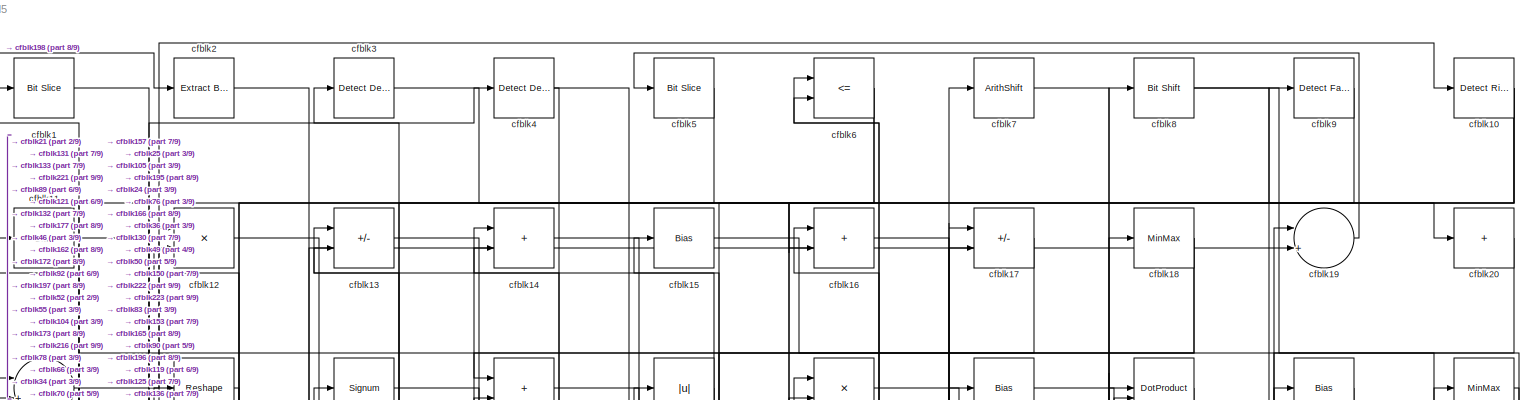
[diagram: root canvas - part 1/9, full width, top band]
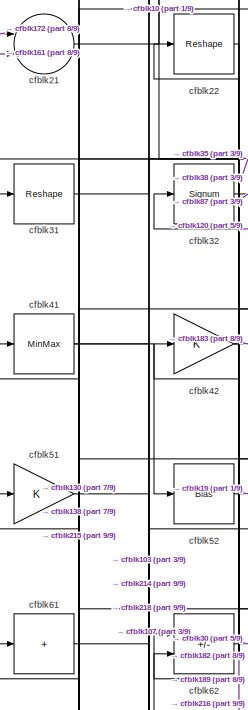
[diagram: root canvas - part 2/9, top left region]
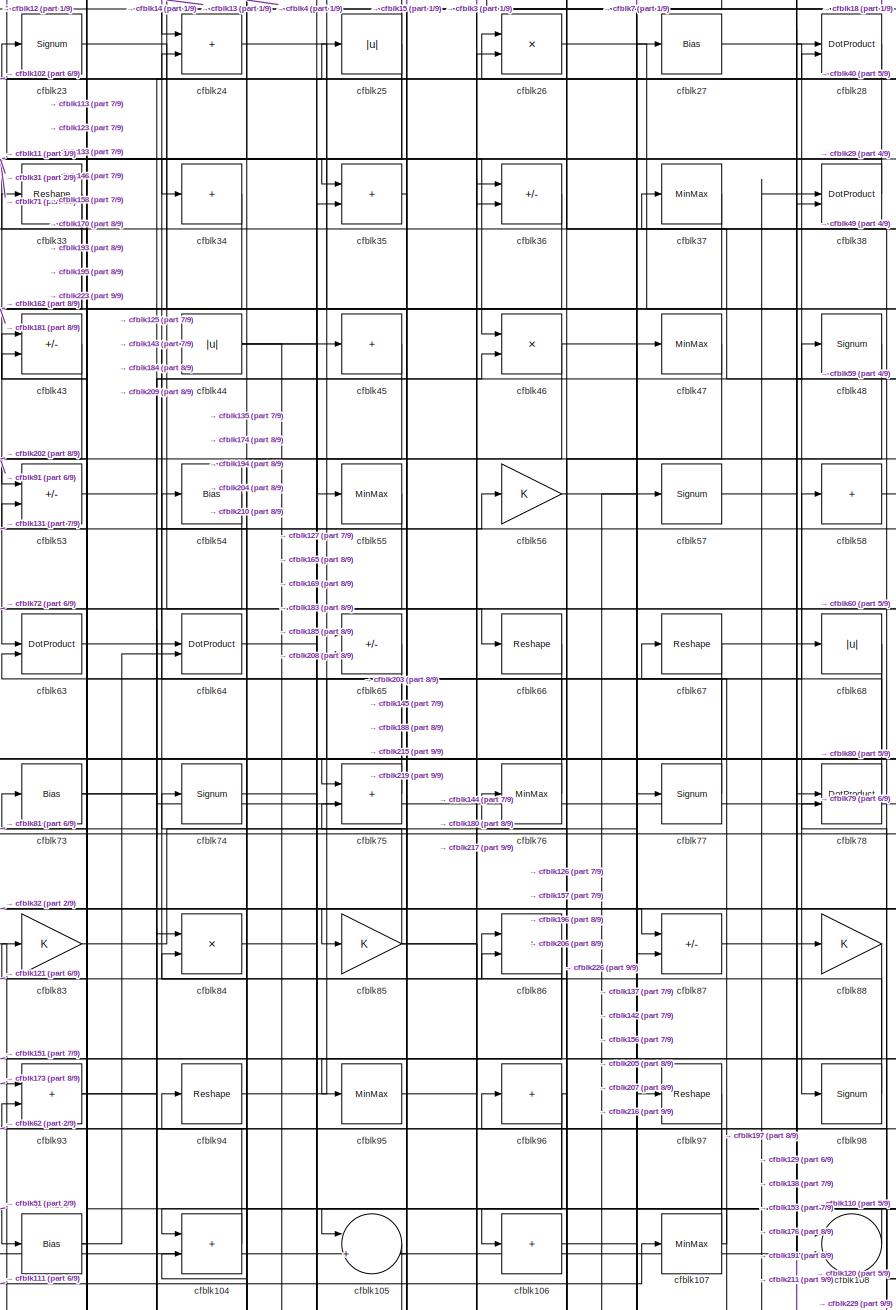
[diagram: root canvas - part 3/9, top center region]
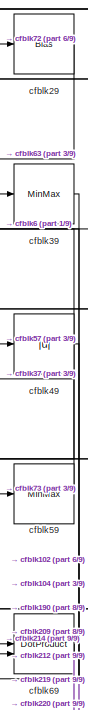
[diagram: root canvas - part 4/9, top right region]
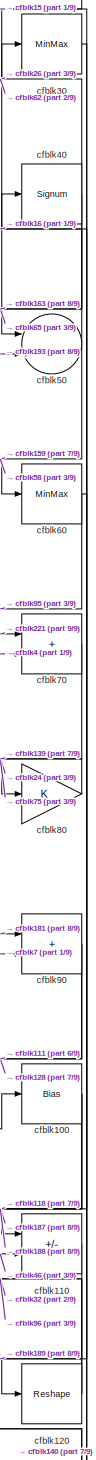
[diagram: root canvas - part 5/9, top right region]
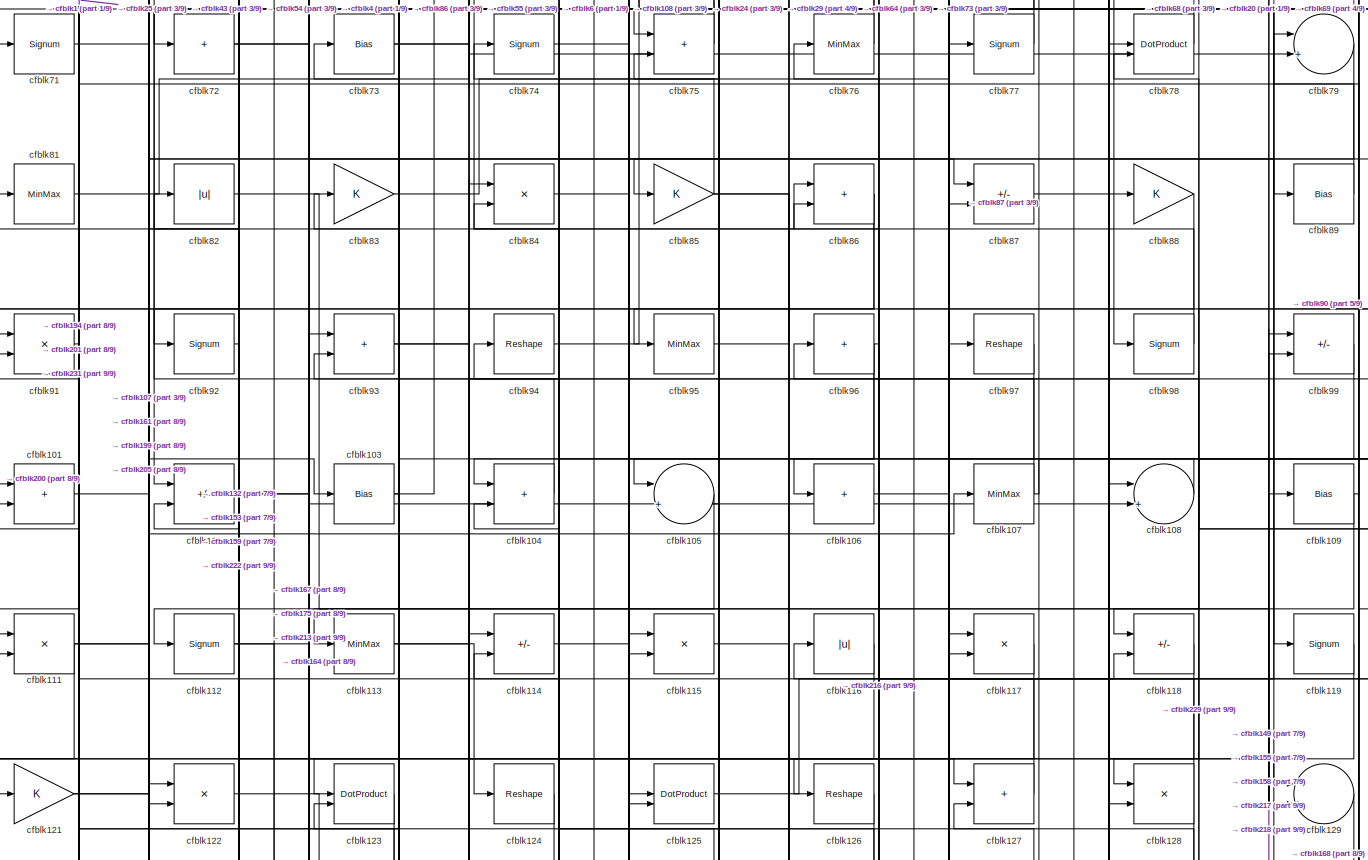
[diagram: root canvas - part 6/9, full width, middle band]
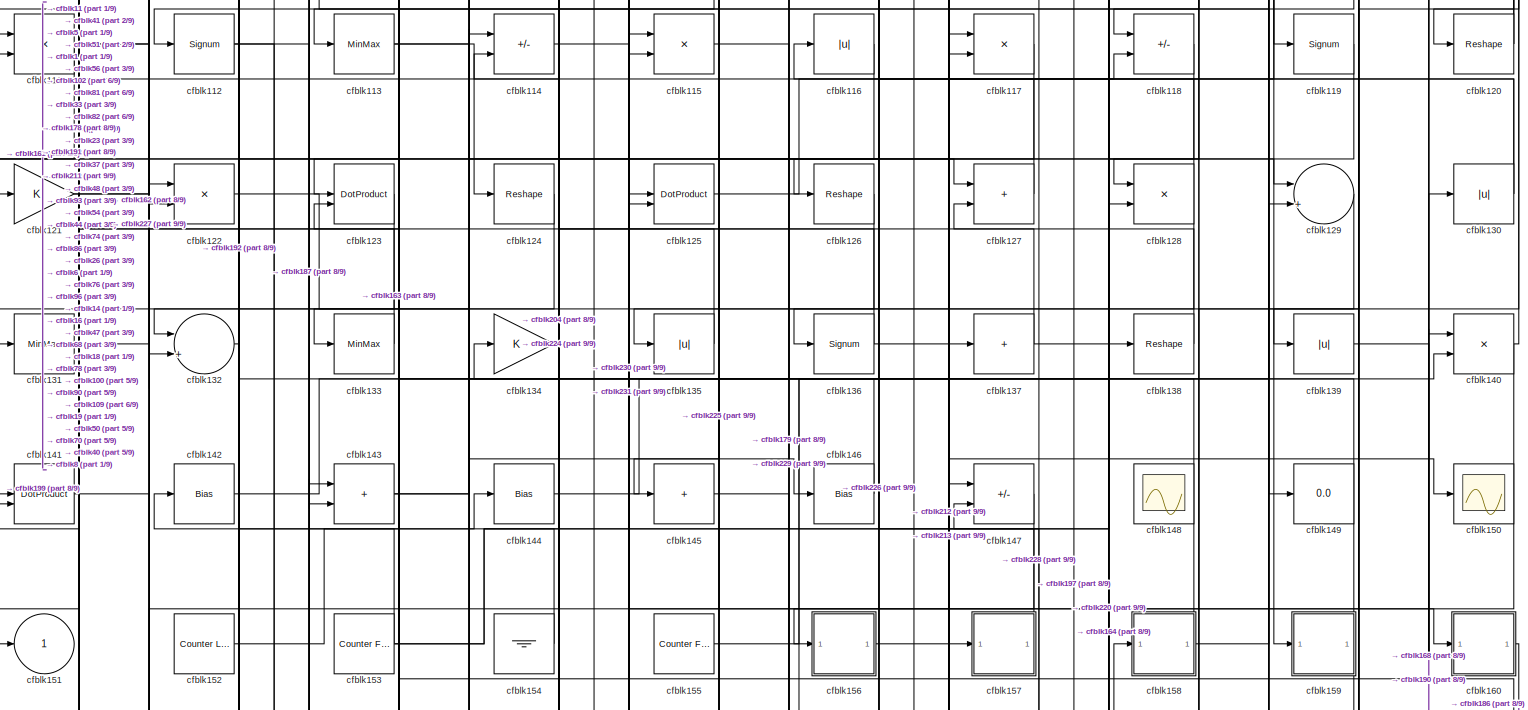
[diagram: root canvas - part 7/9, full width, middle band]
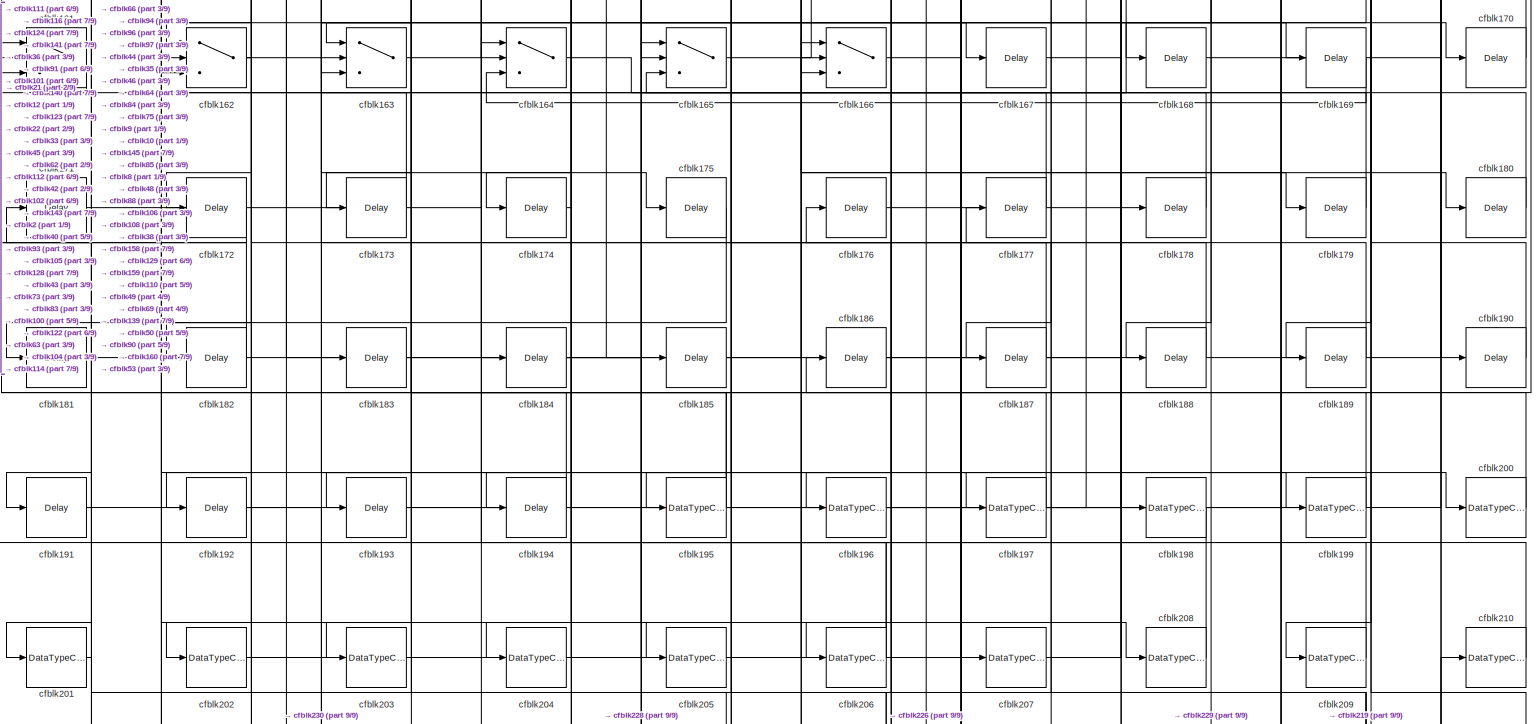
[diagram: root canvas - part 8/9, full width, bottom band]
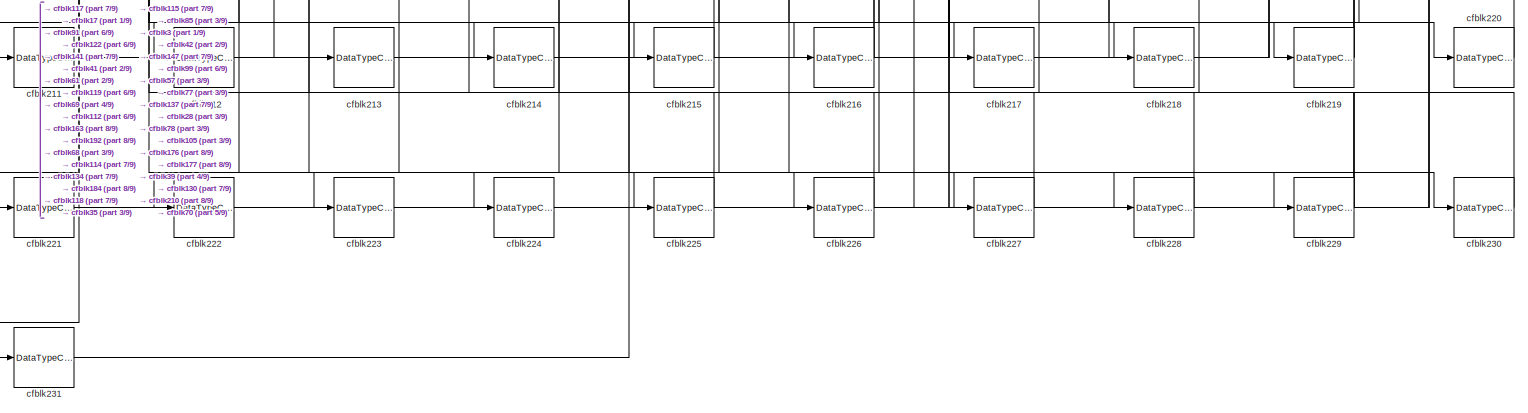
[diagram: root canvas - part 9/9, full width, bottom band]
MODEL slx_5ea6daa9b1d5
KIND model
CONFIG AbsTol = auto
CONFIG EnableMultiTasking = off
CONFIG FixedStep = auto
CONFIG MaxStep = auto
CONFIG MinStep = auto
CONFIG RelTol = 1e-3
CONFIG SampleTimeConstraint = Unconstrained
CONFIG SolverName = VariableStepAuto
CONFIG StartTime = 0.0
CONFIG StopTime = 10.0
BLOCK [Reference] cfblk1  REF=hdlsllib/Logic and Bit
Operations/Bit Slice
  SourceBlock = hdlsllib/Logic and Bit\nOperations/Bit Slice
  SourceType = Bit Slice
BLOCK [Reference] cfblk10  REF=hdlsllib/Logic and Bit
Operations/Detect Rise
Nonnegative
  SourceBlock = hdlsllib/Logic and Bit\nOperations/Detect Rise\nNonnegative
  SourceType = Detect Rise Nonnegative
BLOCK [Bias] cfblk100
  Bias = 0.0
  SaturateOnIntegerOverflow = off
BLOCK [Sum] cfblk101
  IconShape = rectangular
BLOCK [Sum] cfblk102
  IconShape = rectangular
  Inputs = +-
BLOCK [Bias] cfblk103
  Bias = 0.0
  SaturateOnIntegerOverflow = off
BLOCK [Sum] cfblk104
  IconShape = rectangular
BLOCK [Sum] cfblk105
  Inputs = |++
BLOCK [Sum] cfblk106
  IconShape = rectangular
  Inputs = +
BLOCK [MinMax] cfblk107
BLOCK [Sum] cfblk108
  Inputs = |++
BLOCK [Bias] cfblk109
  Bias = 0.0
  SaturateOnIntegerOverflow = off
BLOCK [Bias] cfblk11
  Bias = 0.0
  SaturateOnIntegerOverflow = off
BLOCK [Sum] cfblk110
  IconShape = rectangular
  Inputs = +-
BLOCK [Product] cfblk111
  Inputs = */
  RndMeth = Zero
  SaturateOnIntegerOverflow = on
BLOCK [Signum] cfblk112
BLOCK [MinMax] cfblk113
BLOCK [Sum] cfblk114
  IconShape = rectangular
  Inputs = +-
BLOCK [Product] cfblk115
  Inputs = */
  RndMeth = Zero
  SaturateOnIntegerOverflow = on
BLOCK [Abs] cfblk116
  SaturateOnIntegerOverflow = off
BLOCK [Product] cfblk117
  Inputs = */
  RndMeth = Zero
  SaturateOnIntegerOverflow = on
BLOCK [Sum] cfblk118
  IconShape = rectangular
  Inputs = +-
BLOCK [Signum] cfblk119
BLOCK [Product] cfblk12
  Inputs = */
  RndMeth = Zero
  SaturateOnIntegerOverflow = on
BLOCK [Reshape] cfblk120
BLOCK [Gain] cfblk121
BLOCK [Product] cfblk122
  Inputs = */
  RndMeth = Zero
  SaturateOnIntegerOverflow = on
BLOCK [DotProduct] cfblk123
  OutDataTypeStr = Inherit: Inherit via internal rule
BLOCK [Reshape] cfblk124
BLOCK [DotProduct] cfblk125
  OutDataTypeStr = Inherit: Inherit via internal rule
BLOCK [Reshape] cfblk126
BLOCK [Sum] cfblk127
  IconShape = rectangular
BLOCK [Product] cfblk128
  Inputs = */
  RndMeth = Zero
  SaturateOnIntegerOverflow = on
BLOCK [Sum] cfblk129
  Inputs = |++
BLOCK [Sum] cfblk13
  IconShape = rectangular
  Inputs = +-
BLOCK [Abs] cfblk130
  SaturateOnIntegerOverflow = off
BLOCK [MinMax] cfblk131
BLOCK [Sum] cfblk132
  Inputs = |++
BLOCK [MinMax] cfblk133
BLOCK [Gain] cfblk134
BLOCK [Abs] cfblk135
  SaturateOnIntegerOverflow = off
BLOCK [Signum] cfblk136
BLOCK [Sum] cfblk137
  IconShape = rectangular
  Inputs = +
BLOCK [Reshape] cfblk138
BLOCK [Abs] cfblk139
  SaturateOnIntegerOverflow = off
BLOCK [Sum] cfblk14
  IconShape = rectangular
BLOCK [Product] cfblk140
  Inputs = */
  RndMeth = Zero
  SaturateOnIntegerOverflow = on
BLOCK [DotProduct] cfblk141
  OutDataTypeStr = Inherit: Inherit via internal rule
BLOCK [Bias] cfblk142
  Bias = 0.0
  SaturateOnIntegerOverflow = off
BLOCK [Sum] cfblk143
  IconShape = rectangular
BLOCK [Bias] cfblk144
  Bias = 0.0
  SaturateOnIntegerOverflow = off
BLOCK [Sum] cfblk145
  IconShape = rectangular
  Inputs = +
BLOCK [Bias] cfblk146
  Bias = 0.0
  SaturateOnIntegerOverflow = off
BLOCK [Sum] cfblk147
  IconShape = rectangular
  Inputs = +-
BLOCK [Scope] cfblk148
  Floating = on
  NumInputPorts = 1
  ScopeSpecificationString = Simulink.scopes.TimeScopeBlockCfg('CurrentConfiguration', extmgr.ConfigurationSet(extmgr.Configuration('Core','General UI',true,'FigureColor',[0.156862745098039 0.156862745098039 0.156862745098039]),extmgr.Configuration('Core','Source UI',true),extmgr.Configuration('Sources','WiredSimulink',true,'DataLoggingVariableName','ScopeData1','DataLoggingSaveFormat','StructureWithTime','DataLoggingLimitDat...<+2713ch>
BLOCK [Display] cfblk149
  Decimation = 1
BLOCK [Bias] cfblk15
  Bias = 0.0
  SaturateOnIntegerOverflow = off
BLOCK [Scope] cfblk150
  Floating = off
  NumInputPorts = 1
  ScopeSpecificationString = Simulink.scopes.TimeScopeBlockCfg('CurrentConfiguration', extmgr.ConfigurationSet(extmgr.Configuration('Core','General UI',true),extmgr.Configuration('Core','Source UI',true),extmgr.Configuration('Sources','WiredSimulink',true,'DataLoggingVariableName','ScopeData2','DataLoggingSaveFormat','Array','DataLoggingLimitDataPoints',true,'DataLoggingDecimation','1'),extmgr.Configuration('Visuals','Time Do...<+868ch>
BLOCK [Outport] cfblk151
  VectorParamsAs1DForOutWhenUnconnected = off
BLOCK [Reference] cfblk152  REF=hdlsllib/Sources/Counter
Limited
  SourceBlock = hdlsllib/Sources/Counter\nLimited
  SourceType = Counter Limited
BLOCK [Reference] cfblk153  REF=hdlsllib/Sources/Counter
Free-Running
  SourceBlock = hdlsllib/Sources/Counter\nFree-Running
  SourceType = Counter Free-Running
BLOCK [Ground] cfblk154
BLOCK [Reference] cfblk155  REF=hdlsllib/Sources/Counter
Free-Running
  SourceBlock = hdlsllib/Sources/Counter\nFree-Running
  SourceType = Counter Free-Running
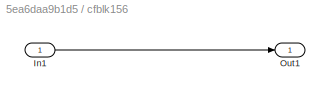
BLOCK [SubSystem] cfblk156
  LibrarySourceBlock = hdlsllib/Ports &\nSubsystems/Subsystem
BLOCK [Inport] cfblk156/In1
BLOCK [Outport] cfblk156/Out1
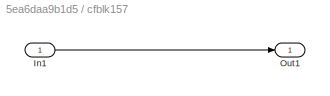
BLOCK [SubSystem] cfblk157
  LibrarySourceBlock = hdlsllib/Ports &\nSubsystems/Subsystem
BLOCK [Inport] cfblk157/In1
BLOCK [Outport] cfblk157/Out1
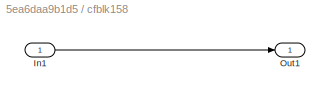
BLOCK [SubSystem] cfblk158
  LibrarySourceBlock = hdlsllib/Ports &\nSubsystems/Subsystem
BLOCK [Inport] cfblk158/In1
BLOCK [Outport] cfblk158/Out1
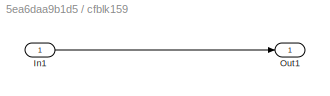
BLOCK [SubSystem] cfblk159
  LibrarySourceBlock = hdlsllib/Ports &\nSubsystems/Subsystem
BLOCK [Inport] cfblk159/In1
BLOCK [Outport] cfblk159/Out1
BLOCK [Sum] cfblk16
  IconShape = rectangular
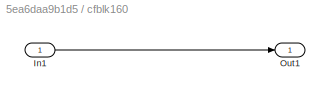
BLOCK [SubSystem] cfblk160
  LibrarySourceBlock = hdlsllib/Ports &\nSubsystems/Subsystem
BLOCK [Inport] cfblk160/In1
BLOCK [Outport] cfblk160/Out1
BLOCK [Switch] cfblk161
  InputSameDT = off
  SaturateOnIntegerOverflow = off
BLOCK [Switch] cfblk162
  InputSameDT = off
  SaturateOnIntegerOverflow = off
BLOCK [Switch] cfblk163
  InputSameDT = off
  SaturateOnIntegerOverflow = off
BLOCK [Switch] cfblk164
  InputSameDT = off
  SaturateOnIntegerOverflow = off
BLOCK [Switch] cfblk165
  InputSameDT = off
  SaturateOnIntegerOverflow = off
BLOCK [Switch] cfblk166
  InputSameDT = off
  SaturateOnIntegerOverflow = off
BLOCK [Delay] cfblk167
  InputPortMap = u0
  SampleTime = 1
BLOCK [Delay] cfblk168
  InputPortMap = u0
  SampleTime = 1
BLOCK [Delay] cfblk169
  InputPortMap = u0
  SampleTime = 1
BLOCK [Sum] cfblk17
  IconShape = rectangular
  Inputs = +-
BLOCK [Delay] cfblk170
  InputPortMap = u0
  SampleTime = 1
BLOCK [Delay] cfblk171
  InputPortMap = u0
  SampleTime = 1
BLOCK [Delay] cfblk172
  InputPortMap = u0
  SampleTime = 1
BLOCK [Delay] cfblk173
  InputPortMap = u0
  SampleTime = 1
BLOCK [Delay] cfblk174
  InputPortMap = u0
  SampleTime = 1
BLOCK [Delay] cfblk175
  InputPortMap = u0
  SampleTime = 1
BLOCK [Delay] cfblk176
  InputPortMap = u0
  SampleTime = 1
BLOCK [Delay] cfblk177
  InputPortMap = u0
  SampleTime = 1
BLOCK [Delay] cfblk178
  InputPortMap = u0
  SampleTime = 1
BLOCK [Delay] cfblk179
  InputPortMap = u0
  SampleTime = 1
BLOCK [MinMax] cfblk18
BLOCK [Delay] cfblk180
  InputPortMap = u0
  SampleTime = 1
BLOCK [Delay] cfblk181
  InputPortMap = u0
  SampleTime = 1
BLOCK [Delay] cfblk182
  InputPortMap = u0
  SampleTime = 1
BLOCK [Delay] cfblk183
  InputPortMap = u0
  SampleTime = 1
BLOCK [Delay] cfblk184
  InputPortMap = u0
  SampleTime = 1
BLOCK [Delay] cfblk185
  InputPortMap = u0
  SampleTime = 1
BLOCK [Delay] cfblk186
  InputPortMap = u0
  SampleTime = 1
BLOCK [Delay] cfblk187
  InputPortMap = u0
  SampleTime = 1
BLOCK [Delay] cfblk188
  InputPortMap = u0
  SampleTime = 1
BLOCK [Delay] cfblk189
  InputPortMap = u0
  SampleTime = 1
BLOCK [Sum] cfblk19
  Inputs = |++
BLOCK [Delay] cfblk190
  InputPortMap = u0
  SampleTime = 1
BLOCK [Delay] cfblk191
  InputPortMap = u0
  SampleTime = 1
BLOCK [Delay] cfblk192
  InputPortMap = u0
  SampleTime = 1
BLOCK [Delay] cfblk193
  InputPortMap = u0
  SampleTime = 1
BLOCK [Delay] cfblk194
  InputPortMap = u0
  SampleTime = 1
BLOCK [DataTypeConversion] cfblk195
  RndMeth = Floor
  SaturateOnIntegerOverflow = off
BLOCK [DataTypeConversion] cfblk196
  OutDataTypeStr = uint8
  RndMeth = Floor
  SaturateOnIntegerOverflow = off
BLOCK [DataTypeConversion] cfblk197
  RndMeth = Floor
  SaturateOnIntegerOverflow = off
BLOCK [DataTypeConversion] cfblk198
  OutDataTypeStr = uint8
  RndMeth = Floor
  SaturateOnIntegerOverflow = off
BLOCK [DataTypeConversion] cfblk199
  OutDataTypeStr = uint8
  RndMeth = Floor
  SaturateOnIntegerOverflow = off
BLOCK [Reference] cfblk2  REF=simulink/Logic and Bit
Operations/Extract Bits
  LibrarySourceBlock = hdlsllib/Logic and Bit\nOperations/Extract Bits
  SourceBlock = simulink/Logic and Bit\nOperations/Extract Bits
  SourceType = Extract Bits
BLOCK [Sum] cfblk20
  IconShape = rectangular
  Inputs = +
BLOCK [DataTypeConversion] cfblk200
  OutDataTypeStr = uint8
  RndMeth = Floor
  SaturateOnIntegerOverflow = off
BLOCK [DataTypeConversion] cfblk201
  OutDataTypeStr = uint8
  RndMeth = Floor
  SaturateOnIntegerOverflow = off
BLOCK [DataTypeConversion] cfblk202
  OutDataTypeStr = uint8
  RndMeth = Floor
  SaturateOnIntegerOverflow = off
BLOCK [DataTypeConversion] cfblk203
  OutDataTypeStr = uint8
  RndMeth = Floor
  SaturateOnIntegerOverflow = off
BLOCK [DataTypeConversion] cfblk204
  RndMeth = Floor
  SaturateOnIntegerOverflow = off
BLOCK [DataTypeConversion] cfblk205
  OutDataTypeStr = uint8
  RndMeth = Floor
  SaturateOnIntegerOverflow = off
BLOCK [DataTypeConversion] cfblk206
  RndMeth = Floor
  SaturateOnIntegerOverflow = off
BLOCK [DataTypeConversion] cfblk207
  OutDataTypeStr = uint8
  RndMeth = Floor
  SaturateOnIntegerOverflow = off
BLOCK [DataTypeConversion] cfblk208
  OutDataTypeStr = uint8
  RndMeth = Floor
  SaturateOnIntegerOverflow = off
BLOCK [DataTypeConversion] cfblk209
  OutDataTypeStr = uint8
  RndMeth = Floor
  SaturateOnIntegerOverflow = off
BLOCK [Sum] cfblk21
  Inputs = |++
BLOCK [DataTypeConversion] cfblk210
  OutDataTypeStr = uint8
  RndMeth = Floor
  SaturateOnIntegerOverflow = off
BLOCK [DataTypeConversion] cfblk211
  OutDataTypeStr = uint8
  RndMeth = Floor
  SaturateOnIntegerOverflow = off
BLOCK [DataTypeConversion] cfblk212
  OutDataTypeStr = uint8
  RndMeth = Floor
  SaturateOnIntegerOverflow = off
BLOCK [DataTypeConversion] cfblk213
  OutDataTypeStr = uint8
  RndMeth = Floor
  SaturateOnIntegerOverflow = off
BLOCK [DataTypeConversion] cfblk214
  OutDataTypeStr = uint8
  RndMeth = Floor
  SaturateOnIntegerOverflow = off
BLOCK [DataTypeConversion] cfblk215
  OutDataTypeStr = uint8
  RndMeth = Floor
  SaturateOnIntegerOverflow = off
BLOCK [DataTypeConversion] cfblk216
  RndMeth = Floor
  SaturateOnIntegerOverflow = off
BLOCK [DataTypeConversion] cfblk217
  OutDataTypeStr = uint8
  RndMeth = Floor
  SaturateOnIntegerOverflow = off
BLOCK [DataTypeConversion] cfblk218
  OutDataTypeStr = uint8
  RndMeth = Floor
  SaturateOnIntegerOverflow = off
BLOCK [DataTypeConversion] cfblk219
  RndMeth = Floor
  SaturateOnIntegerOverflow = off
BLOCK [Reshape] cfblk22
BLOCK [DataTypeConversion] cfblk220
  OutDataTypeStr = uint8
  RndMeth = Floor
  SaturateOnIntegerOverflow = off
BLOCK [DataTypeConversion] cfblk221
  OutDataTypeStr = uint8
  RndMeth = Floor
  SaturateOnIntegerOverflow = off
BLOCK [DataTypeConversion] cfblk222
  OutDataTypeStr = uint8
  RndMeth = Floor
  SaturateOnIntegerOverflow = off
BLOCK [DataTypeConversion] cfblk223
  OutDataTypeStr = uint8
  RndMeth = Floor
  SaturateOnIntegerOverflow = off
BLOCK [DataTypeConversion] cfblk224
  OutDataTypeStr = uint8
  RndMeth = Floor
  SaturateOnIntegerOverflow = off
BLOCK [DataTypeConversion] cfblk225
  OutDataTypeStr = uint8
  RndMeth = Floor
  SaturateOnIntegerOverflow = off
BLOCK [DataTypeConversion] cfblk226
  RndMeth = Floor
  SaturateOnIntegerOverflow = off
BLOCK [DataTypeConversion] cfblk227
  OutDataTypeStr = uint8
  RndMeth = Floor
  SaturateOnIntegerOverflow = off
BLOCK [DataTypeConversion] cfblk228
  OutDataTypeStr = uint8
  RndMeth = Floor
  SaturateOnIntegerOverflow = off
BLOCK [DataTypeConversion] cfblk229
  RndMeth = Floor
  SaturateOnIntegerOverflow = off
BLOCK [Signum] cfblk23
BLOCK [DataTypeConversion] cfblk230
  OutDataTypeStr = uint8
  RndMeth = Floor
  SaturateOnIntegerOverflow = off
BLOCK [DataTypeConversion] cfblk231
  OutDataTypeStr = uint8
  RndMeth = Floor
  SaturateOnIntegerOverflow = off
BLOCK [Sum] cfblk24
  IconShape = rectangular
BLOCK [Abs] cfblk25
  SaturateOnIntegerOverflow = off
BLOCK [Product] cfblk26
  Inputs = */
  RndMeth = Zero
  SaturateOnIntegerOverflow = on
BLOCK [Bias] cfblk27
  Bias = 0.0
  SaturateOnIntegerOverflow = off
BLOCK [DotProduct] cfblk28
  OutDataTypeStr = Inherit: Inherit via internal rule
BLOCK [Bias] cfblk29
  Bias = 0.0
  SaturateOnIntegerOverflow = off
BLOCK [Reference] cfblk3  REF=simulink/Logic and Bit
Operations/Detect
Decrease
  LibrarySourceBlock = hdlsllib/Logic and Bit\nOperations/Detect\nDecrease
  SourceBlock = simulink/Logic and Bit\nOperations/Detect\nDecrease
  SourceType = Detect Decrease
BLOCK [MinMax] cfblk30
BLOCK [Reshape] cfblk31
BLOCK [Signum] cfblk32
BLOCK [Reshape] cfblk33
BLOCK [Sum] cfblk34
  IconShape = rectangular
  Inputs = +
BLOCK [Sum] cfblk35
  IconShape = rectangular
BLOCK [Sum] cfblk36
  IconShape = rectangular
  Inputs = +-
BLOCK [MinMax] cfblk37
BLOCK [DotProduct] cfblk38
  OutDataTypeStr = Inherit: Inherit via internal rule
BLOCK [MinMax] cfblk39
BLOCK [Reference] cfblk4  REF=simulink/Logic and Bit
Operations/Detect
Decrease
  LibrarySourceBlock = hdlsllib/Logic and Bit\nOperations/Detect\nDecrease
  SourceBlock = simulink/Logic and Bit\nOperations/Detect\nDecrease
  SourceType = Detect Decrease
BLOCK [Signum] cfblk40
BLOCK [MinMax] cfblk41
BLOCK [Gain] cfblk42
BLOCK [Sum] cfblk43
  IconShape = rectangular
  Inputs = +-
BLOCK [Abs] cfblk44
  SaturateOnIntegerOverflow = off
BLOCK [Sum] cfblk45
  IconShape = rectangular
  Inputs = +
BLOCK [Product] cfblk46
  Inputs = */
  RndMeth = Zero
  SaturateOnIntegerOverflow = on
BLOCK [MinMax] cfblk47
BLOCK [Signum] cfblk48
BLOCK [Abs] cfblk49
  SaturateOnIntegerOverflow = off
BLOCK [Reference] cfblk5  REF=hdlsllib/Logic and Bit
Operations/Bit Slice
  SourceBlock = hdlsllib/Logic and Bit\nOperations/Bit Slice
  SourceType = Bit Slice
BLOCK [Sum] cfblk50
  Inputs = |++
BLOCK [Gain] cfblk51
BLOCK [Bias] cfblk52
  Bias = 0.0
  SaturateOnIntegerOverflow = off
BLOCK [Sum] cfblk53
  IconShape = rectangular
  Inputs = +-
BLOCK [Bias] cfblk54
  Bias = 0.0
  SaturateOnIntegerOverflow = off
BLOCK [MinMax] cfblk55
BLOCK [Gain] cfblk56
BLOCK [Signum] cfblk57
BLOCK [Sum] cfblk58
  IconShape = rectangular
  Inputs = +
BLOCK [MinMax] cfblk59
BLOCK [RelationalOperator] cfblk6
  InputSameDT = off
  Operator = <=
  OutDataTypeStr = boolean
BLOCK [MinMax] cfblk60
BLOCK [Sum] cfblk61
  IconShape = rectangular
  Inputs = +
BLOCK [Sum] cfblk62
  IconShape = rectangular
  Inputs = +-
BLOCK [DotProduct] cfblk63
  OutDataTypeStr = Inherit: Inherit via internal rule
BLOCK [DotProduct] cfblk64
  OutDataTypeStr = Inherit: Inherit via internal rule
BLOCK [Sum] cfblk65
  IconShape = rectangular
  Inputs = +-
BLOCK [Reshape] cfblk66
BLOCK [Reshape] cfblk67
BLOCK [Abs] cfblk68
  SaturateOnIntegerOverflow = off
BLOCK [DotProduct] cfblk69
  OutDataTypeStr = Inherit: Inherit via internal rule
BLOCK [ArithShift] cfblk7
  BitShiftNumber = 8
  InputPortMap = u0
BLOCK [Sum] cfblk70
  IconShape = rectangular
BLOCK [Signum] cfblk71
BLOCK [Sum] cfblk72
  IconShape = rectangular
  Inputs = +
BLOCK [Bias] cfblk73
  Bias = 0.0
  SaturateOnIntegerOverflow = off
BLOCK [Signum] cfblk74
BLOCK [Sum] cfblk75
  IconShape = rectangular
BLOCK [MinMax] cfblk76
BLOCK [Signum] cfblk77
BLOCK [DotProduct] cfblk78
  OutDataTypeStr = Inherit: Inherit via internal rule
BLOCK [Sum] cfblk79
  Inputs = |++
BLOCK [Reference] cfblk8  REF=hdlsllib/Logic and Bit
Operations/Bit Shift
  SourceBlock = hdlsllib/Logic and Bit\nOperations/Bit Shift
  SourceType = Bit Shift
BLOCK [Gain] cfblk80
BLOCK [MinMax] cfblk81
BLOCK [Abs] cfblk82
  SaturateOnIntegerOverflow = off
BLOCK [Gain] cfblk83
BLOCK [Product] cfblk84
  Inputs = */
  RndMeth = Zero
  SaturateOnIntegerOverflow = on
BLOCK [Gain] cfblk85
BLOCK [Sum] cfblk86
  IconShape = rectangular
BLOCK [Sum] cfblk87
  IconShape = rectangular
  Inputs = +-
BLOCK [Gain] cfblk88
BLOCK [Bias] cfblk89
  Bias = 0.0
  SaturateOnIntegerOverflow = off
BLOCK [Reference] cfblk9  REF=hdlsllib/Logic and Bit
Operations/Detect Fall
Negative
  SourceBlock = hdlsllib/Logic and Bit\nOperations/Detect Fall\nNegative
  SourceType = Detect Fall Negative
BLOCK [Sum] cfblk90
  IconShape = rectangular
BLOCK [Product] cfblk91
  Inputs = */
  RndMeth = Zero
  SaturateOnIntegerOverflow = on
BLOCK [Signum] cfblk92
BLOCK [Sum] cfblk93
  IconShape = rectangular
BLOCK [Reshape] cfblk94
BLOCK [MinMax] cfblk95
BLOCK [Sum] cfblk96
  IconShape = rectangular
  Inputs = +
BLOCK [Reshape] cfblk97
BLOCK [Signum] cfblk98
BLOCK [Sum] cfblk99
  IconShape = rectangular
  Inputs = +-
NET cfblk100:1 -> cfblk118:1, cfblk187:1, cfblk188:1
LINE cfblk101:1 -> cfblk199:1
NET cfblk102:1 -> cfblk167:1, cfblk24:2
NET cfblk103:1 -> cfblk43:1, cfblk64:2
LINE cfblk104:1 -> cfblk13:1
LINE cfblk105:1 -> cfblk203:1
LINE cfblk106:1 -> cfblk207:1
NET cfblk107:1 -> cfblk62:1, cfblk67:1
LINE cfblk108:1 -> cfblk106:1
NET cfblk109:1 -> cfblk132:1, cfblk79:1
NET cfblk10:1 -> cfblk166:3, cfblk172:1, cfblk173:1
LINE cfblk110:1 -> cfblk189:1
NET cfblk111:1 -> cfblk107:1, cfblk161:3, cfblk205:1
NET cfblk112:1 -> cfblk175:1, cfblk213:1
NET cfblk113:1 -> cfblk124:1, cfblk146:1
LINE cfblk114:1 -> cfblk160:1
LINE cfblk115:1 -> cfblk229:1
LINE cfblk116:1 -> cfblk161:2
LINE cfblk117:1 -> cfblk211:1
LINE cfblk118:1 -> cfblk225:1
LINE cfblk119:1 -> cfblk222:1
LINE cfblk11:1 -> cfblk46:1
NET cfblk120:1 -> cfblk32:1, cfblk96:1
NET cfblk121:1 -> cfblk4:1, cfblk86:2
LINE cfblk122:1 -> cfblk164:2
LINE cfblk123:1 -> cfblk192:1
LINE cfblk124:1 -> cfblk191:1
LINE cfblk125:1 -> cfblk19:1
LINE cfblk126:1 -> cfblk135:1
LINE cfblk127:1 -> cfblk86:1
NET cfblk128:1 -> cfblk116:1, cfblk163:1
LINE cfblk129:1 -> cfblk168:1
LINE cfblk12:1 -> cfblk55:1
NET cfblk130:1 -> cfblk41:1, cfblk6:1
LINE cfblk131:1 -> cfblk56:1
LINE cfblk132:1 -> cfblk82:1
LINE cfblk133:1 -> cfblk11:1
LINE cfblk134:1 -> cfblk224:1
LINE cfblk135:1 -> cfblk54:1
NET cfblk136:1 -> cfblk118:2, cfblk14:2
NET cfblk137:1 -> cfblk127:2, cfblk220:1
LINE cfblk138:1 -> cfblk51:1
LINE cfblk139:1 -> cfblk190:1
LINE cfblk13:1 -> cfblk66:1
NET cfblk140:1 -> cfblk162:3, cfblk40:1
LINE cfblk141:1 -> cfblk227:1
LINE cfblk142:1 -> cfblk47:1
NET cfblk143:1 -> cfblk140:2, cfblk48:1
LINE cfblk144:1 -> cfblk26:2
LINE cfblk145:1 -> cfblk179:1
LINE cfblk146:1 -> cfblk23:1
LINE cfblk147:1 -> cfblk226:1
LINE cfblk14:1 -> cfblk157:1
LINE cfblk152:1 -> cfblk144:1
NET cfblk153:1 -> cfblk102:2, cfblk18:1, cfblk78:1
LINE cfblk154:1 -> cfblk142:1
LINE cfblk155:1 -> cfblk109:1
LINE cfblk156/In1:1 -> cfblk156/Out1:1
LINE cfblk156:1 -> cfblk68:1
LINE cfblk157/In1:1 -> cfblk157/Out1:1
LINE cfblk157:1 -> cfblk76:1
LINE cfblk158/In1:1 -> cfblk158/Out1:1
NET cfblk158:1 -> cfblk129:2, cfblk93:2
LINE cfblk159/In1:1 -> cfblk159/Out1:1
NET cfblk159:1 -> cfblk162:2, cfblk81:1
LINE cfblk15:1 -> cfblk50:1
LINE cfblk160/In1:1 -> cfblk160/Out1:1
LINE cfblk160:1 -> cfblk186:1
LINE cfblk161:1 -> cfblk21:2
NET cfblk162:1 -> cfblk12:2, cfblk170:1
LINE cfblk163:1 -> cfblk100:1
LINE cfblk164:1 -> cfblk158:1
LINE cfblk165:1 -> cfblk8:1
LINE cfblk166:1 -> cfblk200:1
LINE cfblk167:1 -> cfblk198:1
LINE cfblk168:1 -> cfblk140:1
LINE cfblk169:1 -> cfblk164:3
LINE cfblk16:1 -> cfblk150:1
LINE cfblk170:1 -> cfblk53:2
LINE cfblk171:1 -> cfblk164:1
LINE cfblk172:1 -> cfblk21:1
LINE cfblk173:1 -> cfblk93:1
LINE cfblk174:1 -> cfblk104:2
LINE cfblk175:1 -> cfblk201:1
LINE cfblk176:1 -> cfblk38:2
LINE cfblk177:1 -> cfblk12:1
LINE cfblk178:1 -> cfblk141:2
LINE cfblk179:1 -> cfblk165:1
LINE cfblk17:1 -> cfblk221:1
LINE cfblk180:1 -> cfblk165:3
LINE cfblk181:1 -> cfblk90:1
LINE cfblk182:1 -> cfblk161:1
LINE cfblk183:1 -> cfblk35:2
LINE cfblk184:1 -> cfblk228:1
LINE cfblk185:1 -> cfblk166:2
LINE cfblk186:1 -> cfblk128:2
LINE cfblk187:1 -> cfblk143:1
LINE cfblk188:1 -> cfblk75:2
LINE cfblk189:1 -> cfblk62:2
NET cfblk18:1 -> cfblk105:1, cfblk24:1
LINE cfblk190:1 -> cfblk69:2
LINE cfblk191:1 -> cfblk108:1
LINE cfblk192:1 -> cfblk230:1
LINE cfblk193:1 -> cfblk50:2
LINE cfblk194:1 -> cfblk91:2
NET cfblk195:1 -> cfblk43:2, cfblk73:1
LINE cfblk196:1 -> cfblk9:1
NET cfblk197:1 -> cfblk123:2, cfblk38:1
LINE cfblk198:1 -> cfblk2:1
LINE cfblk199:1 -> cfblk141:1
LINE cfblk19:1 -> cfblk5:1
LINE cfblk1:1 -> cfblk132:2
LINE cfblk200:1 -> cfblk101:1
LINE cfblk201:1 -> cfblk101:2
LINE cfblk202:1 -> cfblk178:1
LINE cfblk203:1 -> cfblk45:1
NET cfblk204:1 -> cfblk114:2, cfblk166:1
LINE cfblk205:1 -> cfblk97:1
NET cfblk206:1 -> cfblk171:1, cfblk83:1
LINE cfblk207:1 -> cfblk88:1
LINE cfblk208:1 -> cfblk94:1
LINE cfblk209:1 -> cfblk84:1
LINE cfblk20:1 -> cfblk119:1
LINE cfblk210:1 -> cfblk84:2
LINE cfblk211:1 -> cfblk28:1
LINE cfblk212:1 -> cfblk117:1
LINE cfblk213:1 -> cfblk117:2
LINE cfblk214:1 -> cfblk69:1
LINE cfblk215:1 -> cfblk61:1
NET cfblk216:1 -> cfblk3:1, cfblk42:1, cfblk77:1
LINE cfblk217:1 -> cfblk99:1
LINE cfblk218:1 -> cfblk99:2
NET cfblk219:1 -> cfblk105:2, cfblk176:1, cfblk177:1
LINE cfblk21:1 -> cfblk10:1
LINE cfblk220:1 -> cfblk39:1
LINE cfblk221:1 -> cfblk70:1
LINE cfblk222:1 -> cfblk17:1
LINE cfblk223:1 -> cfblk17:2
LINE cfblk224:1 -> cfblk130:1
LINE cfblk225:1 -> cfblk134:1
NET cfblk226:1 -> cfblk114:1, cfblk210:1, cfblk57:1
LINE cfblk227:1 -> cfblk147:1
LINE cfblk228:1 -> cfblk147:2
NET cfblk229:1 -> cfblk122:1, cfblk163:2, cfblk78:2
LINE cfblk22:1 -> cfblk182:1
LINE cfblk230:1 -> cfblk115:1
LINE cfblk231:1 -> cfblk115:2
LINE cfblk23:1 -> cfblk65:1
LINE cfblk24:1 -> cfblk80:1
NET cfblk25:1 -> cfblk13:2, cfblk53:1, cfblk71:1
LINE cfblk26:1 -> cfblk138:1
LINE cfblk27:1 -> cfblk98:1
LINE cfblk28:1 -> cfblk85:1
LINE cfblk29:1 -> cfblk63:1
LINE cfblk2:1 -> cfblk197:1
LINE cfblk30:1 -> cfblk110:1
LINE cfblk31:1 -> cfblk35:1
LINE cfblk32:1 -> cfblk87:1
NET cfblk33:1 -> cfblk143:2, cfblk162:1
LINE cfblk34:1 -> cfblk113:1
LINE cfblk35:1 -> cfblk215:1
LINE cfblk36:1 -> cfblk181:1
LINE cfblk37:1 -> cfblk133:1
LINE cfblk38:1 -> cfblk31:1
LINE cfblk39:1 -> cfblk219:1
LINE cfblk3:1 -> cfblk36:2
NET cfblk40:1 -> cfblk163:3, cfblk26:1, cfblk65:2
NET cfblk41:1 -> cfblk218:1, cfblk52:1
NET cfblk42:1 -> cfblk183:1, cfblk22:1
LINE cfblk43:1 -> cfblk91:1
NET cfblk44:1 -> cfblk127:1, cfblk185:1, cfblk28:2
LINE cfblk45:1 -> cfblk202:1
NET cfblk46:1 -> cfblk110:2, cfblk165:2
LINE cfblk47:1 -> cfblk126:1
LINE cfblk48:1 -> cfblk196:1
NET cfblk49:1 -> cfblk104:1, cfblk209:1, cfblk6:2
NET cfblk4:1 -> cfblk34:1, cfblk70:2
NET cfblk50:1 -> cfblk159:1, cfblk16:1
LINE cfblk51:1 -> cfblk103:1
LINE cfblk52:1 -> cfblk19:2
LINE cfblk53:1 -> cfblk46:2
LINE cfblk54:1 -> cfblk111:1
LINE cfblk55:1 -> cfblk72:1
LINE cfblk56:1 -> cfblk137:1
LINE cfblk57:1 -> cfblk49:1
LINE cfblk58:1 -> cfblk60:1
LINE cfblk59:1 -> cfblk37:1
LINE cfblk5:1 -> cfblk131:1
NET cfblk60:1 -> cfblk120:1, cfblk95:1
LINE cfblk61:1 -> cfblk214:1
LINE cfblk62:1 -> cfblk30:1
LINE cfblk63:1 -> cfblk184:1
LINE cfblk64:1 -> cfblk169:1
LINE cfblk65:1 -> cfblk123:1
LINE cfblk66:1 -> cfblk174:1
NET cfblk67:1 -> cfblk58:1, cfblk87:2
NET cfblk68:1 -> cfblk121:1, cfblk223:1
NET cfblk69:1 -> cfblk102:1, cfblk212:1
NET cfblk6:1 -> cfblk16:2, cfblk92:1
LINE cfblk70:1 -> cfblk139:1
LINE cfblk71:1 -> cfblk89:1
NET cfblk72:1 -> cfblk108:2, cfblk29:1
NET cfblk73:1 -> cfblk59:1, cfblk79:2
LINE cfblk74:1 -> cfblk125:1
LINE cfblk75:1 -> cfblk33:1
LINE cfblk76:1 -> cfblk15:1
LINE cfblk77:1 -> cfblk63:2
LINE cfblk78:1 -> cfblk14:1
LINE cfblk79:1 -> cfblk122:2
LINE cfblk7:1 -> cfblk90:2
LINE cfblk80:1 -> cfblk75:1
LINE cfblk81:1 -> cfblk64:1
LINE cfblk82:1 -> cfblk149:1
LINE cfblk83:1 -> cfblk7:1
LINE cfblk84:1 -> cfblk208:1
NET cfblk85:1 -> cfblk180:1, cfblk217:1, cfblk74:1
NET cfblk86:1 -> cfblk145:1, cfblk151:1
LINE cfblk87:1 -> cfblk129:1
LINE cfblk88:1 -> cfblk206:1
LINE cfblk89:1 -> cfblk1:1
NET cfblk8:1 -> cfblk136:1, cfblk20:1
NET cfblk90:1 -> cfblk111:2, cfblk128:1
LINE cfblk91:1 -> cfblk231:1
LINE cfblk92:1 -> cfblk112:1
NET cfblk93:1 -> cfblk125:2, cfblk25:1
LINE cfblk94:1 -> cfblk27:1
LINE cfblk95:1 -> cfblk36:1
NET cfblk96:1 -> cfblk156:1, cfblk193:1, cfblk194:1
LINE cfblk97:1 -> cfblk204:1
LINE cfblk98:1 -> cfblk44:1
LINE cfblk99:1 -> cfblk216:1
LINE cfblk9:1 -> cfblk195:1
note: NET lines group one-source signal fan-out (src -> all destinations, sorted); 1:1 wires keep LINE
